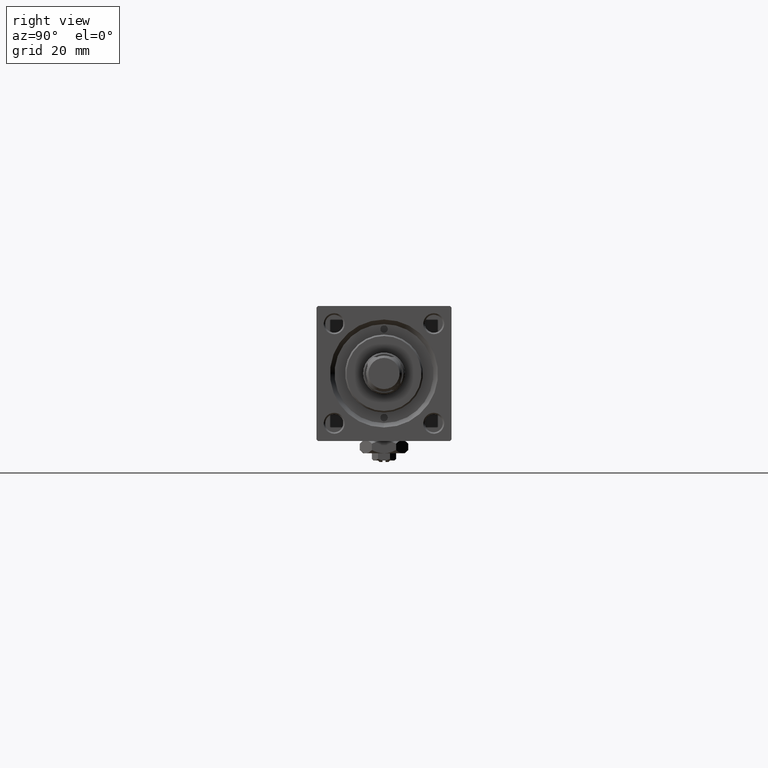
[diagram: clean part render]
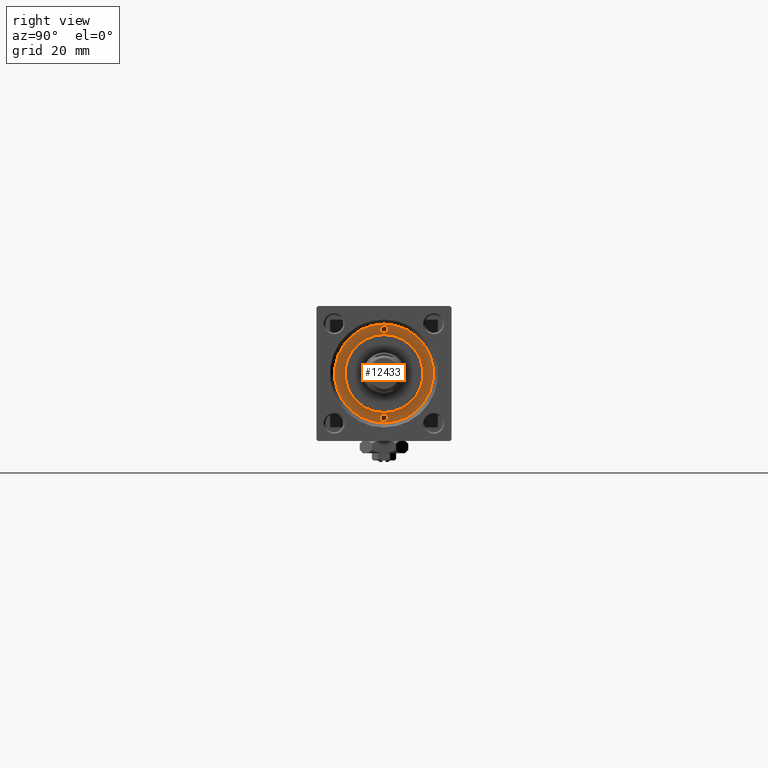
[diagram: same view with one face highlighted and labeled with its STEP entity id]
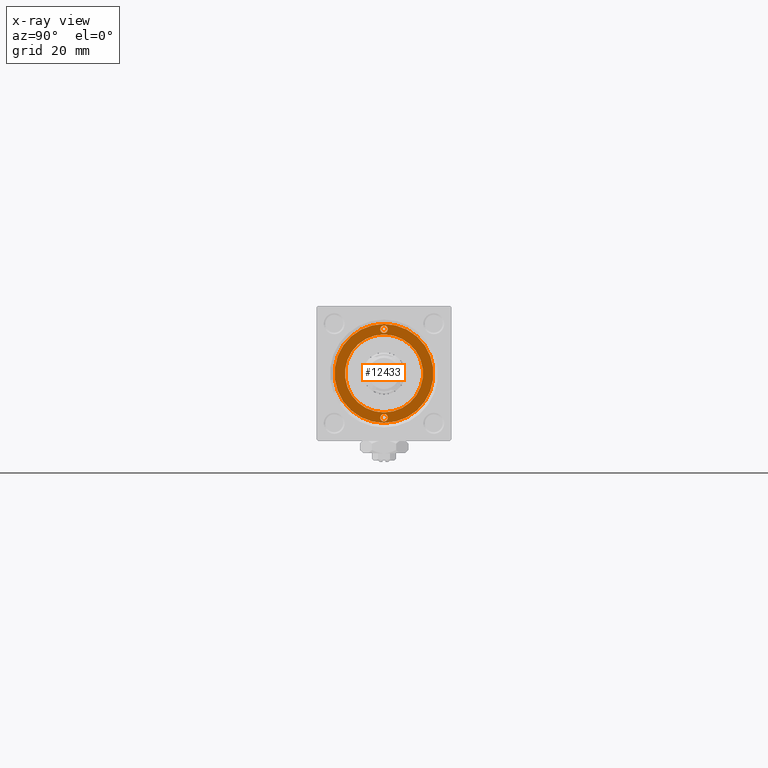
[diagram: x-ray of the same camera — body ghosted, the highlighted face saturated]
A machine part, right view. The second image highlights one B-rep face of the part: STEP entity #12433.
The next image is the same camera in x-ray: the body ghosted, the highlighted face saturated — about 0% of this face is hidden behind the body in this view.
In plain terms, the highlighted planar face has unit normal (1, 0, 0).
Its self-contained STEP definition (entity closure, byte-faithful):
#68 = FACE_BOUND ( 'NONE', #31995, .T. ) ;
#646 = CIRCLE ( 'NONE', #47549, 1.250000000000001110 ) ;
#739 = CARTESIAN_POINT ( 'NONE',  ( 16.50000000000000000, 2.020667218593133100E-15, 28.69999999999999929 ) ) ;
#2824 = AXIS2_PLACEMENT_3D ( 'NONE', #25148, #12340, #49468 ) ;
#4066 = FACE_OUTER_BOUND ( 'NONE', #50212, .T. ) ;
#4291 = CARTESIAN_POINT ( 'NONE',  ( -14.75000000000000000, 0.000000000000000000, 28.69999999999999929 ) ) ;
#5764 = VERTEX_POINT ( 'NONE', #18725 ) ;
#5935 = DIRECTION ( 'NONE',  ( 0.000000000000000000, 0.000000000000000000, 1.000000000000000000 ) ) ;
#8077 = CARTESIAN_POINT ( 'NONE',  ( 0.000000000000000000, 0.000000000000000000, 28.69999999999999929 ) ) ;
#10302 = DIRECTION ( 'NONE',  ( 0.000000000000000000, 0.000000000000000000, 1.000000000000000000 ) ) ;
#10665 = DIRECTION ( 'NONE',  ( 0.000000000000000000, 0.000000000000000000, 1.000000000000000000 ) ) ;
#11463 = DIRECTION ( 'NONE',  ( 1.000000000000000000, 0.000000000000000000, 0.000000000000000000 ) ) ;
#12340 = DIRECTION ( 'NONE',  ( 0.000000000000000000, 0.000000000000000000, 1.000000000000000000 ) ) ;
#12433 = ADVANCED_FACE ( 'NONE', ( #27319, #27594, #68, #4066 ), #28106, .T. ) ;
#12826 = DIRECTION ( 'NONE',  ( 0.000000000000000000, 0.000000000000000000, 1.000000000000000000 ) ) ;
#13014 = CIRCLE ( 'NONE', #36869, 1.249999999999997558 ) ;
#13719 = VERTEX_POINT ( 'NONE', #34789 ) ;
#14166 = VERTEX_POINT ( 'NONE', #21069 ) ;
#14505 = CARTESIAN_POINT ( 'NONE',  ( -15.99999999999999645, 1.530808498934190585E-16, 28.69999999999999929 ) ) ;
#14678 = CIRCLE ( 'NONE', #24881, 1.250000000000001110 ) ;
#16210 = VERTEX_POINT ( 'NONE', #18431 ) ;
#16773 = EDGE_CURVE ( 'NONE', #5764, #16210, #646, .T. ) ;
#17360 = CARTESIAN_POINT ( 'NONE',  ( -14.75000000000000000, 0.000000000000000000, 28.69999999999999929 ) ) ;
#17630 = VERTEX_POINT ( 'NONE', #14505 ) ;
#18431 = CARTESIAN_POINT ( 'NONE',  ( 16.00000000000000000, 0.000000000000000000, 28.69999999999999929 ) ) ;
#18725 = CARTESIAN_POINT ( 'NONE',  ( 13.50000000000000000, 1.530808498934190831E-16, 28.69999999999999929 ) ) ;
#19074 = VERTEX_POINT ( 'NONE', #23591 ) ;
#19234 = DIRECTION ( 'NONE',  ( 0.000000000000000000, 0.000000000000000000, 1.000000000000000000 ) ) ;
#19235 = DIRECTION ( 'NONE',  ( 0.000000000000000000, 0.000000000000000000, 1.000000000000000000 ) ) ;
#19978 = EDGE_LOOP ( 'NONE', ( #50605, #36399 ) ) ;
#19980 = ORIENTED_EDGE ( 'NONE', *, *, #16773, .F. ) ;
#20370 = DIRECTION ( 'NONE',  ( 0.000000000000000000, 0.000000000000000000, 1.000000000000000000 ) ) ;
#20598 = DIRECTION ( 'NONE',  ( 1.000000000000000000, 0.000000000000000000, 0.000000000000000000 ) ) ;
#20696 = EDGE_CURVE ( 'NONE', #37459, #14166, #24612, .T. ) ;
#21031 = CARTESIAN_POINT ( 'NONE',  ( 13.00000000000000178, 1.592040838891559293E-15, 28.69999999999999929 ) ) ;
#21069 = CARTESIAN_POINT ( 'NONE',  ( -13.00000000000000178, 0.000000000000000000, 28.69999999999999929 ) ) ;
#22069 = CARTESIAN_POINT ( 'NONE',  ( 0.000000000000000000, 0.000000000000000000, 28.69999999999999929 ) ) ;
#22241 = DIRECTION ( 'NONE',  ( 1.000000000000000000, 0.000000000000000000, 0.000000000000000000 ) ) ;
#22511 = EDGE_CURVE ( 'NONE', #19074, #46881, #28116, .T. ) ;
#22702 = CARTESIAN_POINT ( 'NONE',  ( 0.000000000000000000, 0.000000000000000000, 28.69999999999999929 ) ) ;
#23240 = CARTESIAN_POINT ( 'NONE',  ( 0.000000000000000000, 0.000000000000000000, 28.69999999999999929 ) ) ;
#23591 = CARTESIAN_POINT ( 'NONE',  ( -16.50000000000000000, 0.000000000000000000, 28.69999999999999929 ) ) ;
#24162 = CIRCLE ( 'NONE', #25862, 16.50000000000000000 ) ;
#24612 = CIRCLE ( 'NONE', #31445, 13.00000000000000178 ) ;
#24881 = AXIS2_PLACEMENT_3D ( 'NONE', #39790, #19235, #11463 ) ;
#25148 = CARTESIAN_POINT ( 'NONE',  ( 0.000000000000000000, 0.000000000000000000, 28.69999999999999929 ) ) ;
#25828 = CIRCLE ( 'NONE', #2824, 13.00000000000000178 ) ;
#25862 = AXIS2_PLACEMENT_3D ( 'NONE', #22069, #10302, #38900 ) ;
#26237 = CARTESIAN_POINT ( 'NONE',  ( 14.75000000000000000, 0.000000000000000000, 28.69999999999999929 ) ) ;
#26412 = DIRECTION ( 'NONE',  ( 1.000000000000000000, 0.000000000000000000, 0.000000000000000000 ) ) ;
#27319 = FACE_BOUND ( 'NONE', #19978, .T. ) ;
#27594 = FACE_BOUND ( 'NONE', #36790, .T. ) ;
#27655 = ORIENTED_EDGE ( 'NONE', *, *, #33477, .T. ) ;
#27696 = EDGE_CURVE ( 'NONE', #16210, #5764, #14678, .T. ) ;
#28106 = PLANE ( 'NONE',  #49022 ) ;
#28116 = CIRCLE ( 'NONE', #35788, 16.50000000000000000 ) ;
#31445 = AXIS2_PLACEMENT_3D ( 'NONE', #22702, #10665, #26412 ) ;
#31995 = EDGE_LOOP ( 'NONE', ( #47230, #37172 ) ) ;
#33065 = EDGE_CURVE ( 'NONE', #14166, #37459, #25828, .T. ) ;
#33477 = EDGE_CURVE ( 'NONE', #46881, #19074, #24162, .T. ) ;
#33660 = DIRECTION ( 'NONE',  ( 0.000000000000000000, 0.000000000000000000, 1.000000000000000000 ) ) ;
#34789 = CARTESIAN_POINT ( 'NONE',  ( -13.50000000000000178, 0.000000000000000000, 28.69999999999999929 ) ) ;
#35788 = AXIS2_PLACEMENT_3D ( 'NONE', #23240, #19234, #47801 ) ;
#36399 = ORIENTED_EDGE ( 'NONE', *, *, #49905, .F. ) ;
#36790 = EDGE_LOOP ( 'NONE', ( #49870, #19980 ) ) ;
#36869 = AXIS2_PLACEMENT_3D ( 'NONE', #4291, #12826, #20598 ) ;
#37172 = ORIENTED_EDGE ( 'NONE', *, *, #20696, .F. ) ;
#37459 = VERTEX_POINT ( 'NONE', #21031 ) ;
#37513 = ORIENTED_EDGE ( 'NONE', *, *, #22511, .T. ) ;
#37863 = AXIS2_PLACEMENT_3D ( 'NONE', #17360, #33660, #49966 ) ;
#38900 = DIRECTION ( 'NONE',  ( 1.000000000000000000, 0.000000000000000000, 0.000000000000000000 ) ) ;
#39790 = CARTESIAN_POINT ( 'NONE',  ( 14.75000000000000000, 0.000000000000000000, 28.69999999999999929 ) ) ;
#39877 = DIRECTION ( 'NONE',  ( 1.000000000000000000, 0.000000000000000000, -0.000000000000000000 ) ) ;
#46370 = CIRCLE ( 'NONE', #37863, 1.249999999999997558 ) ;
#46881 = VERTEX_POINT ( 'NONE', #739 ) ;
#47230 = ORIENTED_EDGE ( 'NONE', *, *, #33065, .F. ) ;
#47549 = AXIS2_PLACEMENT_3D ( 'NONE', #26237, #5935, #22241 ) ;
#47801 = DIRECTION ( 'NONE',  ( 1.000000000000000000, 0.000000000000000000, 0.000000000000000000 ) ) ;
#49022 = AXIS2_PLACEMENT_3D ( 'NONE', #8077, #20370, #39877 ) ;
#49468 = DIRECTION ( 'NONE',  ( 1.000000000000000000, 0.000000000000000000, 0.000000000000000000 ) ) ;
#49870 = ORIENTED_EDGE ( 'NONE', *, *, #27696, .F. ) ;
#49905 = EDGE_CURVE ( 'NONE', #17630, #13719, #13014, .T. ) ;
#49966 = DIRECTION ( 'NONE',  ( 1.000000000000000000, 0.000000000000000000, 0.000000000000000000 ) ) ;
#50212 = EDGE_LOOP ( 'NONE', ( #37513, #27655 ) ) ;
#50605 = ORIENTED_EDGE ( 'NONE', *, *, #52832, .F. ) ;
#52832 = EDGE_CURVE ( 'NONE', #13719, #17630, #46370, .T. ) ;